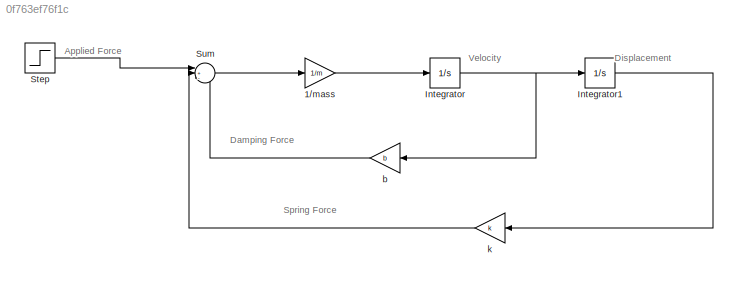
MODEL slx_0f763ef76f1c
KIND model
CONFIG AbsTol = auto
CONFIG EnableMultiTasking = off
CONFIG FixedStep = auto
CONFIG MaxStep = auto
CONFIG MinStep = auto
CONFIG RelTol = 1e-3
CONFIG SampleTimeConstraint = Unconstrained
CONFIG SolverName = VariableStepAuto
CONFIG StartTime = 0.0
CONFIG StopTime = 10.0
BLOCK [Gain] 1//mass
  Gain = 1/m
BLOCK [Integrator] Integrator
BLOCK [Integrator] Integrator1
BLOCK [Step] Step
  SampleTime = 0
BLOCK [Sum] Sum
  Inputs = |+--
BLOCK [Gain] b
  Gain = b
BLOCK [Gain] k
  Gain = k
ANNOTATION (root): Applied Force
ANNOTATION (root): Damping Force
ANNOTATION (root): Displacement
ANNOTATION (root): Spring Force
ANNOTATION (root): Velocity
LINE 1//mass:1 -> Integrator:1
LINE Integrator1:1 -> k:1
NET Integrator:1 -> Integrator1:1, b:1
LINE Step:1 -> Sum:1
LINE Sum:1 -> 1//mass:1
LINE b:1 -> Sum:3
LINE k:1 -> Sum:2
note: NET lines group one-source signal fan-out (src -> all destinations, sorted); 1:1 wires keep LINE
